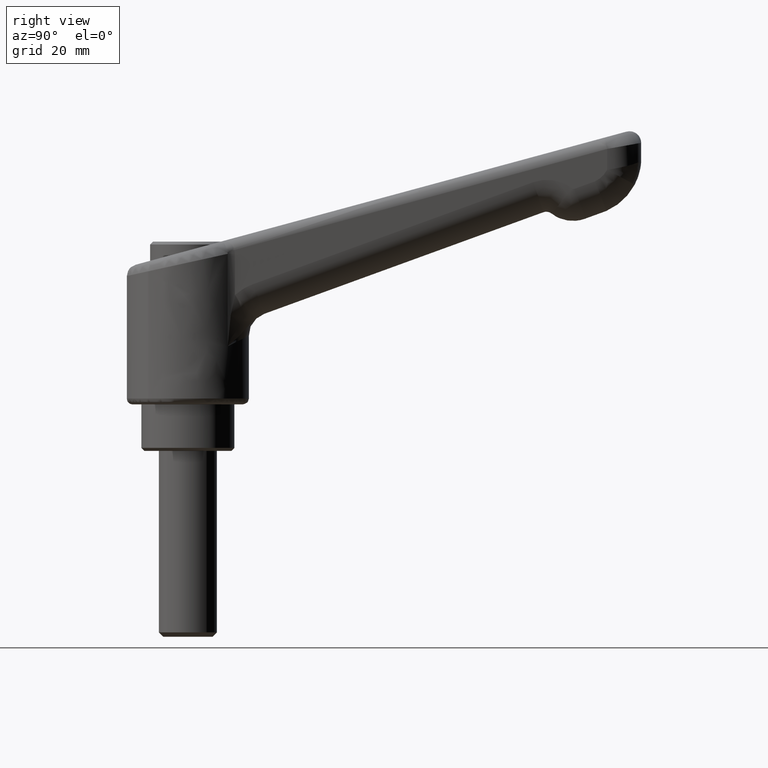
[diagram: clean part render]
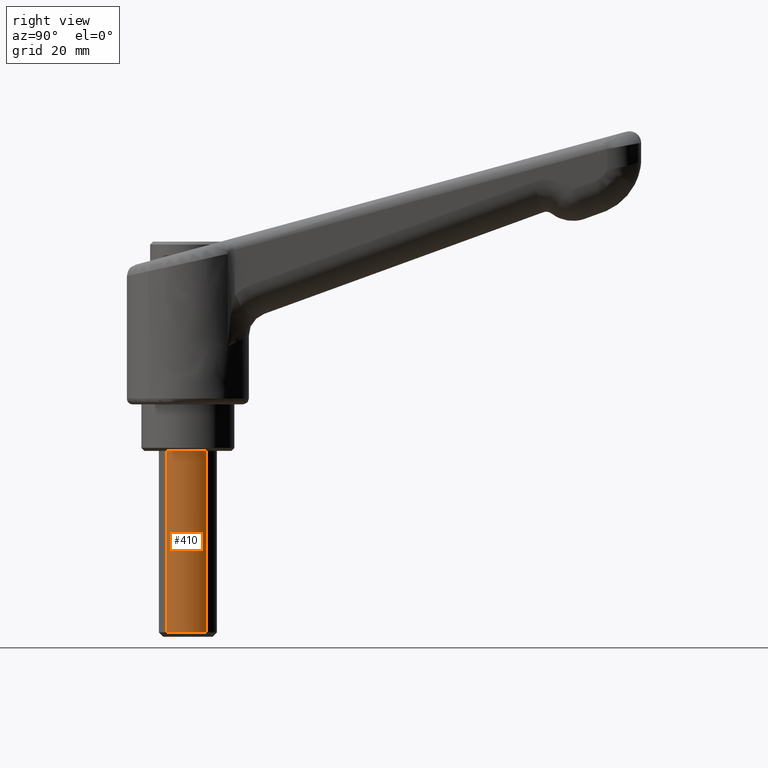
[diagram: same view with one face highlighted and labeled with its STEP entity id]
A machine part, right view. The second image highlights one B-rep face of the part: STEP entity #410.
In plain terms, the highlighted face is a freeform B-spline surface patch.
Its self-contained STEP definition (entity closure, byte-faithful):
#130=CARTESIAN_POINT('',(3.228710430370044,-3.817778369414143,-39.250000000000441));
#131=VERTEX_POINT('',#130);
#139=CARTESIAN_POINT('',(0.000001103779310,-4.999999999999878,-39.250000000000000));
#140=VERTEX_POINT('',#139);
#141=CARTESIAN_POINT('',(0.000001103779310,-4.999999999999878,-39.250000000000000));
#142=CARTESIAN_POINT('',(0.438760767942223,-5.000119860792130,-39.250000000000107));
#143=CARTESIAN_POINT('',(1.261343519076983,-4.891033211766624,-39.250000000000092));
#144=CARTESIAN_POINT('',(2.355783201851340,-4.455876074299318,-39.250000000000362));
#145=CARTESIAN_POINT('',(2.963521911765788,-4.042105001144990,-39.250000000000483));
#146=CARTESIAN_POINT('',(3.228710430370044,-3.817778369414143,-39.250000000000441));
#147=B_SPLINE_CURVE_WITH_KNOTS('',3,(#141,#142,#143,#144,#145,#146),.UNSPECIFIED.,.F.,.U.,(4,1,1,4),(0.000000020080297,1.316249349979904,2.467960617587364,3.509990188578831),.UNSPECIFIED.);
#148=EDGE_CURVE('',#140,#131,#147,.T.);
#150=CARTESIAN_POINT('',(-3.626871692597787,-3.441772649343107,-39.249999999999361));
#151=VERTEX_POINT('',#150);
#152=CARTESIAN_POINT('',(-3.626871692597787,-3.441772649343107,-39.249999999999361));
#153=CARTESIAN_POINT('',(-3.292379091110170,-3.794532002855156,-39.249999999999517));
#154=CARTESIAN_POINT('',(-2.704261736708310,-4.256013612536312,-39.249999999999453));
#155=CARTESIAN_POINT('',(-1.747088599890137,-4.711064529260011,-39.249999999999687));
#156=CARTESIAN_POINT('',(-0.908794726722660,-4.945442502122185,-39.249999999999993));
#157=CARTESIAN_POINT('',(-0.295888130741004,-5.000026606622265,-39.249999999999858));
#158=CARTESIAN_POINT('',(0.000001103779310,-4.999999999999878,-39.250000000000000));
#159=B_SPLINE_CURVE_WITH_KNOTS('',3,(#152,#153,#154,#155,#156,#157,#158),.UNSPECIFIED.,.F.,.U.,(4,1,1,1,4),(0.000000027682011,1.458322937709929,2.219165650413971,3.170249549110080,4.057918744367030),.UNSPECIFIED.);
#160=EDGE_CURVE('',#151,#140,#159,.T.);
#300=CARTESIAN_POINT('',(-3.626871692151759,-3.441772649813121,-7.999999999999787));
#301=VERTEX_POINT('',#300);
#302=CARTESIAN_POINT('',(-3.626871692597787,-3.441772649343107,-39.249999999999361));
#303=CARTESIAN_POINT('',(-3.626871692151759,-3.441772649813121,-7.999999999999787));
#304=QUASI_UNIFORM_CURVE('',1,(#302,#303),.UNSPECIFIED.,.F.,.U.);
#305=EDGE_CURVE('',#151,#301,#304,.T.);
#350=CARTESIAN_POINT('',(3.228710429602193,-3.817778370063518,-7.999999999999788));
#351=VERTEX_POINT('',#350);
#361=CARTESIAN_POINT('',(3.228710430370044,-3.817778369414143,-39.250000000000441));
#362=CARTESIAN_POINT('',(3.228710429602193,-3.817778370063518,-7.999999999999788));
#363=QUASI_UNIFORM_CURVE('',1,(#361,#362),.UNSPECIFIED.,.F.,.U.);
#364=EDGE_CURVE('',#131,#351,#363,.T.);
#369=CARTESIAN_POINT('',(-3.626871855061437,-3.441772878468769,-40.031250000000007));
#370=CARTESIAN_POINT('',(-0.376621797922258,-6.866821790875346,-40.031250000000021));
#371=CARTESIAN_POINT('',(3.228710191910127,-3.817778214702324,-40.031250000000021));
#372=CARTESIAN_POINT('',(-3.626871855061437,-3.441772878468769,-7.199218749999779));
#373=CARTESIAN_POINT('',(-0.376621797922258,-6.866821790875346,-7.199218749999779));
#374=CARTESIAN_POINT('',(3.228710191910127,-3.817778214702324,-7.199218749999781));
#382=(BOUNDED_SURFACE()B_SPLINE_SURFACE(2,1,((#369,#372),(#370,#373),(#371,#374)),.UNSPECIFIED.,.F.,.F.,.U.)B_SPLINE_SURFACE_WITH_KNOTS((3,3),(2,2),(0.0,7.950717793543950),(0.0,32.832031250000242),.UNSPECIFIED.)GEOMETRIC_REPRESENTATION_ITEM()RATIONAL_B_SPLINE_SURFACE(((1.0,1.0),(0.718822509939086,0.718822509939086),(0.977505800795127,0.977505800795127)))REPRESENTATION_ITEM('')SURFACE());
#383=ORIENTED_EDGE('',*,*,#148,.T.);
#384=ORIENTED_EDGE('',*,*,#364,.T.);
#385=CARTESIAN_POINT('',(0.000001103779310,-4.999999999999878,-7.999999999999789));
#386=VERTEX_POINT('',#385);
#387=CARTESIAN_POINT('',(0.000001103779310,-4.999999999999878,-7.999999999999789));
#388=CARTESIAN_POINT('',(0.292497077806147,-5.000013982251756,-7.999999999999794));
#389=CARTESIAN_POINT('',(0.968905010369025,-4.940528679409872,-7.999999999999789));
#390=CARTESIAN_POINT('',(2.097277982247787,-4.603048068901714,-7.999999999999790));
#391=CARTESIAN_POINT('',(2.851952960627691,-4.136689893905315,-7.999999999999788));
#392=CARTESIAN_POINT('',(3.228710429602193,-3.817778370063518,-7.999999999999788));
#393=B_SPLINE_CURVE_WITH_KNOTS('',3,(#387,#388,#389,#390,#391,#392),.UNSPECIFIED.,.F.,.U.,(4,1,1,4),(0.000000020080380,0.877497794597346,2.029207884121568,3.509990187573193),.UNSPECIFIED.);
#394=EDGE_CURVE('',#386,#351,#393,.T.);
#395=ORIENTED_EDGE('',*,*,#394,.F.);
#396=CARTESIAN_POINT('',(-3.626871692151759,-3.441772649813121,-7.999999999999787));
#397=CARTESIAN_POINT('',(-3.350508691011283,-3.733120128624183,-7.999999999999793));
#398=CARTESIAN_POINT('',(-2.776304861834567,-4.207926686878392,-7.999999999999774));
#399=CARTESIAN_POINT('',(-1.828891564819324,-4.688227627735443,-7.999999999999815));
#400=CARTESIAN_POINT('',(-0.908795673168094,-4.945447872588546,-7.999999999999774));
#401=CARTESIAN_POINT('',(-0.295887175747678,-5.000020987692825,-7.999999999999790));
#402=CARTESIAN_POINT('',(0.000001103779310,-4.999999999999878,-7.999999999999789));
#403=B_SPLINE_CURVE_WITH_KNOTS('',3,(#396,#397,#398,#399,#400,#401,#402),.UNSPECIFIED.,.F.,.U.,(4,1,1,1,4),(0.000000027681850,1.204698727122665,2.219165650059670,3.170249548603886,4.057918743719057),.UNSPECIFIED.);
#404=EDGE_CURVE('',#301,#386,#403,.T.);
#405=ORIENTED_EDGE('',*,*,#404,.F.);
#406=ORIENTED_EDGE('',*,*,#305,.F.);
#407=ORIENTED_EDGE('',*,*,#160,.T.);
#408=EDGE_LOOP('',(#383,#384,#395,#405,#406,#407));
#409=FACE_OUTER_BOUND('',#408,.T.);
#410=ADVANCED_FACE('',(#409),#382,.T.);